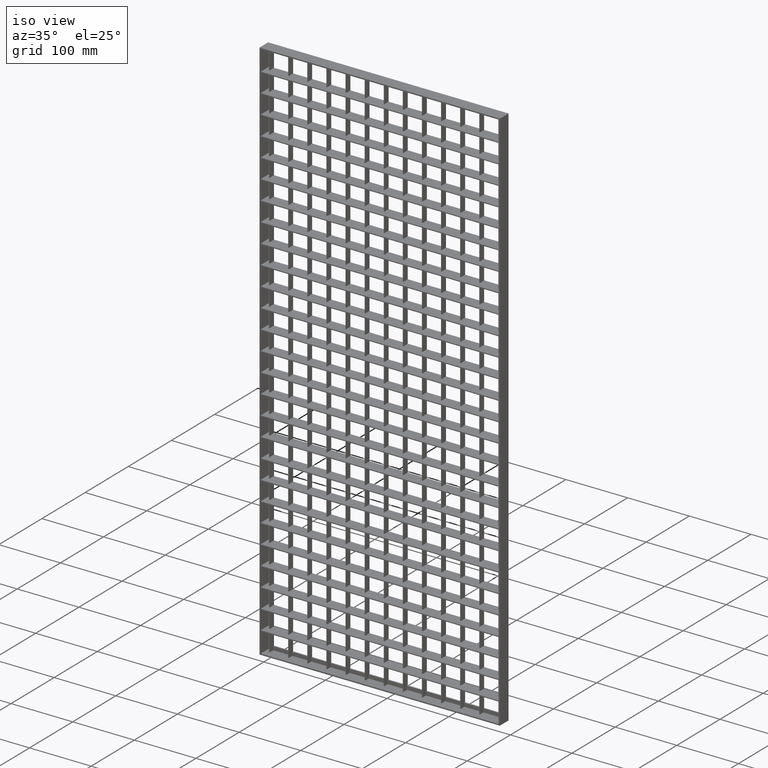
[diagram: clean part render]
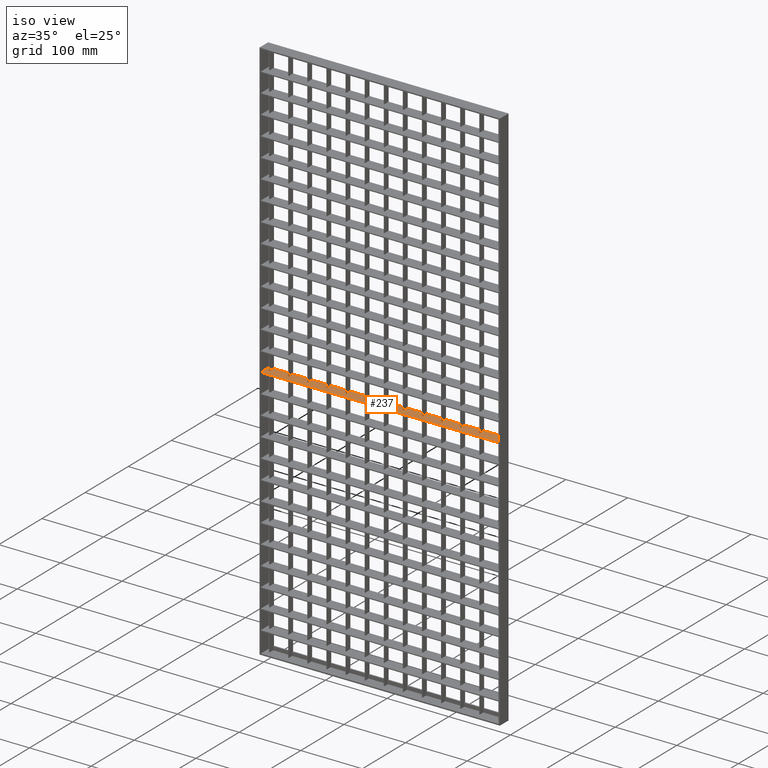
[diagram: same view with one face highlighted and labeled with its STEP entity id]
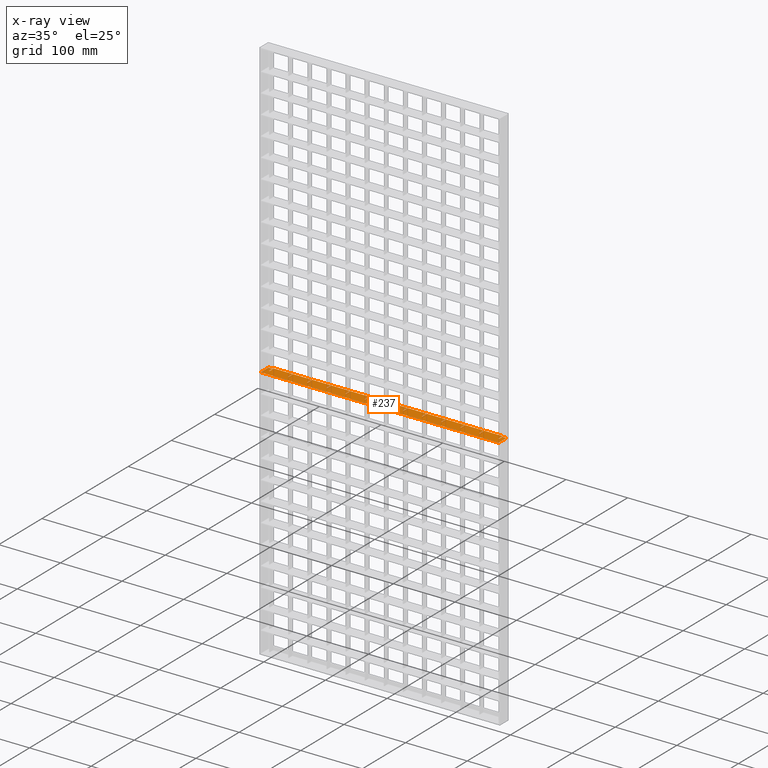
[diagram: x-ray of the same camera — body ghosted, the highlighted face saturated]
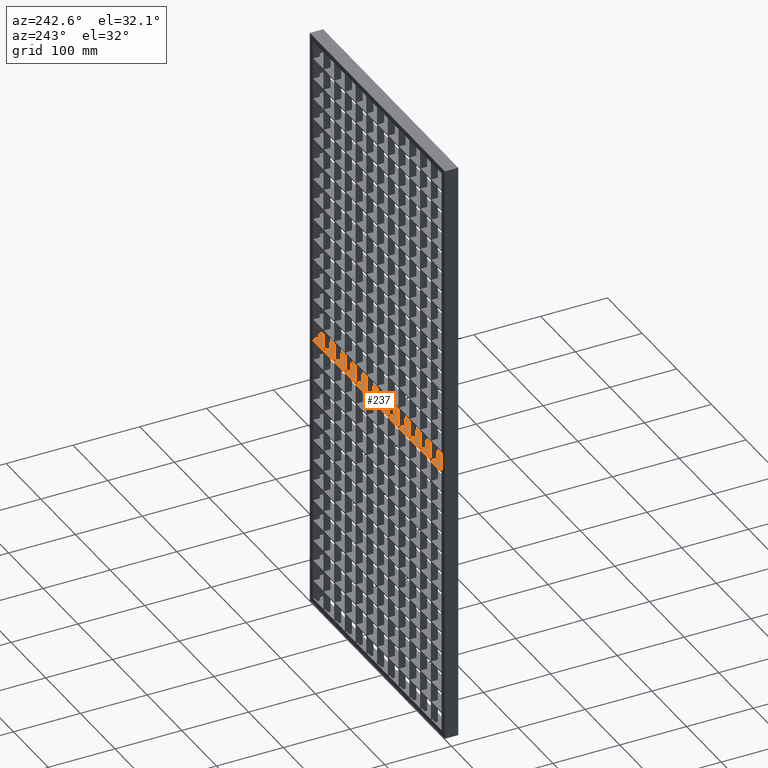
[diagram: same view with one face highlighted and labeled with its STEP entity id]
A machine part, iso view. The second image highlights one B-rep face of the part: STEP entity #237.
The next image is the same camera in x-ray: the body ghosted, the highlighted face saturated — about 0% of this face is hidden behind the body in this view.
A second angle (auxiliary view) of the same face is appended — the face is thin or edge-on in the first view.
In plain terms, the highlighted planar face has unit normal (0, 0, -1).
Its self-contained STEP definition (entity closure, byte-faithful):
#63 = ORIENTED_EDGE ( 'NONE', *, *, #46955, .T. ) ;
#68 = DIRECTION ( 'NONE',  ( -1.000000000000000000, -3.061616997868383100E-016, 0.0000000000000000000 ) ) ;
#237 = ADVANCED_FACE ( 'NONE', ( #7965 ), #49594, .F. ) ;
#270 = CARTESIAN_POINT ( 'NONE',  ( 318.5000000000000600, -9.999999999999881000, -475.7499999999998300 ) ) ;
#369 = ORIENTED_EDGE ( 'NONE', *, *, #13346, .F. ) ;
#382 = VECTOR ( 'NONE', #42459, 1000.000000000000000 ) ;
#421 = LINE ( 'NONE', #18877, #41153 ) ;
#816 = CARTESIAN_POINT ( 'NONE',  ( 194.5000000000000000, 4.006218688963914100E-015, -475.7499999999998300 ) ) ;
#1051 = CARTESIAN_POINT ( 'NONE',  ( 40.50000000000003600, 1.734723475976807100E-015, -475.7499999999998300 ) ) ;
#1086 = CARTESIAN_POINT ( 'NONE',  ( 408.0561711201316400, 6.938893903907228400E-014, -475.7499999999998300 ) ) ;
#1114 = ORIENTED_EDGE ( 'NONE', *, *, #15429, .T. ) ;
#1427 = EDGE_CURVE ( 'NONE', #21440, #25671, #1530, .T. ) ;
#1498 = CARTESIAN_POINT ( 'NONE',  ( 408.0561711201316400, 9.714451465470119700E-014, -475.7499999999998300 ) ) ;
#1527 = DIRECTION ( 'NONE',  ( 0.0000000000000000000, -1.000000000000000000, 0.0000000000000000000 ) ) ;
#1530 = LINE ( 'NONE', #26472, #45565 ) ;
#1734 = CARTESIAN_POINT ( 'NONE',  ( 408.0561711201316400, 7.806255641895631900E-014, -475.7499999999998300 ) ) ;
#1737 = CARTESIAN_POINT ( 'NONE',  ( 408.0561711201316400, 10.00000000000012100, -475.7499999999998300 ) ) ;
#1749 = DIRECTION ( 'NONE',  ( -1.000000000000000000, -3.061616997868381200E-016, 0.0000000000000000000 ) ) ;
#1875 = EDGE_CURVE ( 'NONE', #20072, #6559, #24755, .T. ) ;
#1971 = VERTEX_POINT ( 'NONE', #27092 ) ;
#2035 = EDGE_CURVE ( 'NONE', #48201, #40255, #32765, .T. ) ;
#2042 = VERTEX_POINT ( 'NONE', #35571 ) ;
#2337 = DIRECTION ( 'NONE',  ( 1.000000000000000000, -3.061616997868381200E-016, 0.0000000000000000000 ) ) ;
#2777 = DIRECTION ( 'NONE',  ( 0.0000000000000000000, 0.0000000000000000000, -1.000000000000000000 ) ) ;
#2973 = ORIENTED_EDGE ( 'NONE', *, *, #48140, .F. ) ;
#2989 = DIRECTION ( 'NONE',  ( -1.000000000000000000, -3.061616997868383100E-016, 0.0000000000000000000 ) ) ;
#3210 = ORIENTED_EDGE ( 'NONE', *, *, #1427, .F. ) ;
#3255 = ORIENTED_EDGE ( 'NONE', *, *, #46879, .F. ) ;
#3257 = ORIENTED_EDGE ( 'NONE', *, *, #37257, .T. ) ;
#3399 = CARTESIAN_POINT ( 'NONE',  ( 226.5000000000001700, 10.00000000000006400, -475.7499999999998300 ) ) ;
#3609 = EDGE_CURVE ( 'NONE', #40255, #8225, #3876, .T. ) ;
#3862 = EDGE_CURVE ( 'NONE', #30713, #9901, #6626, .T. ) ;
#3866 = ORIENTED_EDGE ( 'NONE', *, *, #46438, .F. ) ;
#3876 = LINE ( 'NONE', #18207, #21850 ) ;
#3988 = CARTESIAN_POINT ( 'NONE',  ( 195.5000000000000600, 10.00000000000005300, -475.7499999999998300 ) ) ;
#4001 = ORIENTED_EDGE ( 'NONE', *, *, #27707, .T. ) ;
#4385 = EDGE_CURVE ( 'NONE', #22173, #34581, #31902, .T. ) ;
#4673 = LINE ( 'NONE', #6856, #54146 ) ;
#4738 = VERTEX_POINT ( 'NONE', #32320 ) ;
#4905 = DIRECTION ( 'NONE',  ( 0.0000000000000000000, -1.000000000000000000, 0.0000000000000000000 ) ) ;
#4929 = DIRECTION ( 'NONE',  ( 0.0000000000000000000, -1.000000000000000000, 0.0000000000000000000 ) ) ;
#4942 = EDGE_CURVE ( 'NONE', #19429, #15413, #34463, .T. ) ;
#5078 = ORIENTED_EDGE ( 'NONE', *, *, #33174, .T. ) ;
#5100 = EDGE_CURVE ( 'NONE', #37119, #21631, #34414, .T. ) ;
#5117 = EDGE_CURVE ( 'NONE', #27367, #22173, #13692, .T. ) ;
#5299 = DIRECTION ( 'NONE',  ( 0.0000000000000000000, 1.000000000000000000, 0.0000000000000000000 ) ) ;
#5538 = LINE ( 'NONE', #1498, #40219 ) ;
#5614 = ORIENTED_EDGE ( 'NONE', *, *, #37575, .F. ) ;
#5666 = DIRECTION ( 'NONE',  ( 1.000000000000000000, -3.061616997868381200E-016, 0.0000000000000000000 ) ) ;
#6009 = ORIENTED_EDGE ( 'NONE', *, *, #44670, .T. ) ;
#6010 = DIRECTION ( 'NONE',  ( -1.000000000000000000, -3.061616997868383100E-016, 0.0000000000000000000 ) ) ;
#6059 = EDGE_CURVE ( 'NONE', #36776, #41568, #15555, .T. ) ;
#6076 = VECTOR ( 'NONE', #14223, 1000.000000000000000 ) ;
#6293 = VECTOR ( 'NONE', #13672, 1000.000000000000000 ) ;
#6340 = VECTOR ( 'NONE', #43347, 1000.000000000000000 ) ;
#6490 = CARTESIAN_POINT ( 'NONE',  ( 2.000000000000003600, -10.00000000000000000, -475.7499999999998300 ) ) ;
#6559 = VERTEX_POINT ( 'NONE', #6490 ) ;
#6626 = LINE ( 'NONE', #19313, #32615 ) ;
#6679 = CARTESIAN_POINT ( 'NONE',  ( 349.5000000000001100, 2.741007806152566700E-015, -475.7499999999998300 ) ) ;
#6795 = LINE ( 'NONE', #26118, #47474 ) ;
#6856 = CARTESIAN_POINT ( 'NONE',  ( 382.0000000000000600, 8.000000000000001800, -475.7499999999998300 ) ) ;
#6949 = VECTOR ( 'NONE', #34655, 1000.000000000000000 ) ;
#7043 = EDGE_CURVE ( 'NONE', #25671, #14429, #6795, .T. ) ;
#7054 = ORIENTED_EDGE ( 'NONE', *, *, #50504, .T. ) ;
#7240 = DIRECTION ( 'NONE',  ( 0.0000000000000000000, 1.000000000000000000, 0.0000000000000000000 ) ) ;
#7363 = EDGE_CURVE ( 'NONE', #21631, #36112, #22039, .T. ) ;
#7482 = ORIENTED_EDGE ( 'NONE', *, *, #24256, .F. ) ;
#7569 = CARTESIAN_POINT ( 'NONE',  ( 257.5000000000001100, 10.00000000000007300, -475.7499999999998300 ) ) ;
#7644 = CARTESIAN_POINT ( 'NONE',  ( 408.0561711201316400, 10.00000000000012100, -475.7499999999998300 ) ) ;
#7777 = VECTOR ( 'NONE', #46389, 1000.000000000000000 ) ;
#7893 = VECTOR ( 'NONE', #52473, 1000.000000000000000 ) ;
#7965 = FACE_OUTER_BOUND ( 'NONE', #23148, .T. ) ;
#8006 = VECTOR ( 'NONE', #68, 1000.000000000000000 ) ;
#8225 = VERTEX_POINT ( 'NONE', #54975 ) ;
#8494 = LINE ( 'NONE', #40041, #42524 ) ;
#8557 = EDGE_CURVE ( 'NONE', #15889, #21728, #45953, .T. ) ;
#8660 = ORIENTED_EDGE ( 'NONE', *, *, #2035, .F. ) ;
#8685 = VECTOR ( 'NONE', #35574, 1000.000000000000000 ) ;
#8803 = LINE ( 'NONE', #54336, #22820 ) ;
#9099 = VECTOR ( 'NONE', #30860, 1000.000000000000000 ) ;
#9434 = ORIENTED_EDGE ( 'NONE', *, *, #28523, .T. ) ;
#9717 = CARTESIAN_POINT ( 'NONE',  ( 408.0561711201316400, 10.00000000000012100, -475.7499999999998300 ) ) ;
#9727 = ORIENTED_EDGE ( 'NONE', *, *, #8557, .T. ) ;
#9901 = VERTEX_POINT ( 'NONE', #42356 ) ;
#9967 = CARTESIAN_POINT ( 'NONE',  ( 39.50000000000003600, -9.999999999999881000, -475.7499999999998300 ) ) ;
#10103 = LINE ( 'NONE', #15313, #26798 ) ;
#10123 = CARTESIAN_POINT ( 'NONE',  ( 195.0000000000000300, 8.000000000000001800, -475.7499999999998300 ) ) ;
#10453 = ORIENTED_EDGE ( 'NONE', *, *, #29276, .F. ) ;
#11071 = CARTESIAN_POINT ( 'NONE',  ( 408.0561711201316400, 1.162264728904460800E-013, -475.7499999999998300 ) ) ;
#11163 = CARTESIAN_POINT ( 'NONE',  ( 7.999999999999996400, 8.000000000000001800, -475.7499999999998300 ) ) ;
#11169 = VERTEX_POINT ( 'NONE', #36412 ) ;
#11181 = ORIENTED_EDGE ( 'NONE', *, *, #54154, .T. ) ;
#11191 = LINE ( 'NONE', #55251, #30569 ) ;
#11194 = EDGE_CURVE ( 'NONE', #33657, #15889, #53027, .T. ) ;
#11240 = ORIENTED_EDGE ( 'NONE', *, *, #30528, .F. ) ;
#11282 = VERTEX_POINT ( 'NONE', #19555 ) ;
#11696 = EDGE_CURVE ( 'NONE', #11282, #42205, #5538, .T. ) ;
#11713 = DIRECTION ( 'NONE',  ( 0.0000000000000000000, -1.000000000000000000, 0.0000000000000000000 ) ) ;
#11898 = DIRECTION ( 'NONE',  ( 0.0000000000000000000, 1.000000000000000000, 0.0000000000000000000 ) ) ;
#12000 = LINE ( 'NONE', #1737, #24025 ) ;
#12222 = CARTESIAN_POINT ( 'NONE',  ( 163.5000000000000000, 10.00000000000000400, -475.7499999999998300 ) ) ;
#12579 = VERTEX_POINT ( 'NONE', #18188 ) ;
#12752 = CARTESIAN_POINT ( 'NONE',  ( 8.500000000000007100, -9.999999999999881000, -475.7499999999998300 ) ) ;
#12923 = LINE ( 'NONE', #13485, #16259 ) ;
#13344 = DIRECTION ( 'NONE',  ( 0.0000000000000000000, 1.000000000000000000, 0.0000000000000000000 ) ) ;
#13346 = EDGE_CURVE ( 'NONE', #8225, #9901, #35448, .T. ) ;
#13349 = CARTESIAN_POINT ( 'NONE',  ( 408.0561711201316400, 10.00000000000012100, -475.7499999999998300 ) ) ;
#13485 = CARTESIAN_POINT ( 'NONE',  ( 194.5000000000000000, -9.999999999999881000, -475.7499999999998300 ) ) ;
#13533 = LINE ( 'NONE', #14767, #47650 ) ;
#13582 = ORIENTED_EDGE ( 'NONE', *, *, #1875, .F. ) ;
#13613 = ORIENTED_EDGE ( 'NONE', *, *, #53094, .T. ) ;
#13672 = DIRECTION ( 'NONE',  ( 0.0000000000000000000, 1.000000000000000000, 0.0000000000000000000 ) ) ;
#13692 = LINE ( 'NONE', #30118, #39139 ) ;
#13836 = CARTESIAN_POINT ( 'NONE',  ( 102.4999999999999900, -9.999999999999881000, -475.7499999999998300 ) ) ;
#13902 = CARTESIAN_POINT ( 'NONE',  ( 349.5000000000001700, 10.00000000000010300, -475.7499999999998300 ) ) ;
#13911 = DIRECTION ( 'NONE',  ( -1.000000000000000000, -3.061616997868381200E-016, 0.0000000000000000000 ) ) ;
#13994 = CARTESIAN_POINT ( 'NONE',  ( 226.5000000000001100, -9.999999999999881000, -475.7499999999998300 ) ) ;
#13998 = CARTESIAN_POINT ( 'NONE',  ( 408.0561711201316400, -9.999999999999881000, -475.7499999999998300 ) ) ;
#14093 = VERTEX_POINT ( 'NONE', #12222 ) ;
#14122 = VECTOR ( 'NONE', #7240, 1000.000000000000000 ) ;
#14204 = VECTOR ( 'NONE', #53289, 1000.000000000000000 ) ;
#14210 = EDGE_CURVE ( 'NONE', #46195, #41833, #39308, .T. ) ;
#14222 = CARTESIAN_POINT ( 'NONE',  ( 163.5000000000000000, 3.188823375455965000E-015, -475.7499999999998300 ) ) ;
#14223 = DIRECTION ( 'NONE',  ( 0.0000000000000000000, 1.000000000000000000, 0.0000000000000000000 ) ) ;
#14233 = CARTESIAN_POINT ( 'NONE',  ( 388.0000000000000600, -9.999999999999881000, -475.7499999999998300 ) ) ;
#14331 = DIRECTION ( 'NONE',  ( -1.000000000000000000, -3.061616997868383100E-016, 0.0000000000000000000 ) ) ;
#14429 = VERTEX_POINT ( 'NONE', #26949 ) ;
#14573 = VECTOR ( 'NONE', #2989, 1000.000000000000000 ) ;
#14580 = ORIENTED_EDGE ( 'NONE', *, *, #5117, .F. ) ;
#14649 = CARTESIAN_POINT ( 'NONE',  ( 319.5000000000001100, 10.00000000000009200, -475.7499999999998300 ) ) ;
#14735 = CARTESIAN_POINT ( 'NONE',  ( 408.0561711201316400, -1.387778780781445700E-014, -475.7499999999998300 ) ) ;
#14767 = CARTESIAN_POINT ( 'NONE',  ( 2.000000000000003600, -10.00000000000000000, -475.7499999999998300 ) ) ;
#15005 = VERTEX_POINT ( 'NONE', #816 ) ;
#15313 = CARTESIAN_POINT ( 'NONE',  ( 349.5000000000001100, -9.999999999999881000, -475.7499999999998300 ) ) ;
#15328 = CARTESIAN_POINT ( 'NONE',  ( 194.5000000000000000, 10.00000000000000400, -475.7499999999998300 ) ) ;
#15356 = DIRECTION ( 'NONE',  ( -1.000000000000000000, 0.0000000000000000000, -0.0000000000000000000 ) ) ;
#15413 = VERTEX_POINT ( 'NONE', #1051 ) ;
#15429 = EDGE_CURVE ( 'NONE', #47511, #11282, #35130, .T. ) ;
#15555 = LINE ( 'NONE', #36797, #34313 ) ;
#15785 = ORIENTED_EDGE ( 'NONE', *, *, #17867, .T. ) ;
#15865 = ORIENTED_EDGE ( 'NONE', *, *, #14210, .T. ) ;
#15889 = VERTEX_POINT ( 'NONE', #41865 ) ;
#16138 = CARTESIAN_POINT ( 'NONE',  ( 287.5000000000001100, 10.00000000000008300, -475.7499999999998300 ) ) ;
#16259 = VECTOR ( 'NONE', #43404, 1000.000000000000000 ) ;
#16352 = ORIENTED_EDGE ( 'NONE', *, *, #44871, .T. ) ;
#16355 = ORIENTED_EDGE ( 'NONE', *, *, #41570, .T. ) ;
#16551 = CARTESIAN_POINT ( 'NONE',  ( 288.5000000000001100, 10.00000000000008300, -475.7499999999998300 ) ) ;
#16624 = VERTEX_POINT ( 'NONE', #19667 ) ;
#16670 = CARTESIAN_POINT ( 'NONE',  ( 2.000000000000003600, 8.000000000000001800, -475.7499999999998300 ) ) ;
#16693 = LINE ( 'NONE', #41691, #21366 ) ;
#16848 = VERTEX_POINT ( 'NONE', #55381 ) ;
#16879 = VERTEX_POINT ( 'NONE', #32974 ) ;
#17028 = ORIENTED_EDGE ( 'NONE', *, *, #48203, .T. ) ;
#17867 = EDGE_CURVE ( 'NONE', #11169, #34581, #52917, .T. ) ;
#17912 = DIRECTION ( 'NONE',  ( -1.000000000000000000, -3.061616997868383100E-016, 0.0000000000000000000 ) ) ;
#17952 = VERTEX_POINT ( 'NONE', #41241 ) ;
#18001 = DIRECTION ( 'NONE',  ( 0.0000000000000000000, -1.000000000000000000, 0.0000000000000000000 ) ) ;
#18188 = CARTESIAN_POINT ( 'NONE',  ( 133.5000000000000000, 1.734723475976807100E-015, -475.7499999999998300 ) ) ;
#18207 = CARTESIAN_POINT ( 'NONE',  ( 408.0561711201316400, -5.204170427930421300E-015, -475.7499999999998300 ) ) ;
#18317 = VECTOR ( 'NONE', #42654, 1000.000000000000000 ) ;
#18388 = CARTESIAN_POINT ( 'NONE',  ( 382.0000000000000600, 8.000000000000001800, -475.7499999999998300 ) ) ;
#18524 = DIRECTION ( 'NONE',  ( 0.0000000000000000000, 1.000000000000000000, 0.0000000000000000000 ) ) ;
#18568 = CARTESIAN_POINT ( 'NONE',  ( 408.0561711201316400, 10.00000000000012100, -475.7499999999998300 ) ) ;
#18779 = DIRECTION ( 'NONE',  ( 0.0000000000000000000, 1.000000000000000000, 0.0000000000000000000 ) ) ;
#18862 = VECTOR ( 'NONE', #48068, 1000.000000000000000 ) ;
#18877 = CARTESIAN_POINT ( 'NONE',  ( 408.0561711201316400, -2.428612866367529900E-014, -475.7499999999998300 ) ) ;
#18888 = VECTOR ( 'NONE', #49374, 1000.000000000000000 ) ;
#19285 = ORIENTED_EDGE ( 'NONE', *, *, #52448, .T. ) ;
#19300 = ORIENTED_EDGE ( 'NONE', *, *, #11696, .T. ) ;
#19302 = VECTOR ( 'NONE', #4929, 1000.000000000000000 ) ;
#19313 = CARTESIAN_POINT ( 'NONE',  ( 408.0561711201316400, 10.00000000000012100, -475.7499999999998300 ) ) ;
#19429 = VERTEX_POINT ( 'NONE', #47407 ) ;
#19498 = DIRECTION ( 'NONE',  ( 0.0000000000000000000, 1.000000000000000000, 0.0000000000000000000 ) ) ;
#19555 = CARTESIAN_POINT ( 'NONE',  ( 102.4999999999999900, 1.734723475976807100E-015, -475.7499999999998300 ) ) ;
#19605 = DIRECTION ( 'NONE',  ( 0.0000000000000000000, -1.000000000000000000, 0.0000000000000000000 ) ) ;
#19667 = CARTESIAN_POINT ( 'NONE',  ( 319.5000000000001100, 2.826379213078284100E-015, -475.7499999999998300 ) ) ;
#20014 = CARTESIAN_POINT ( 'NONE',  ( 408.0561711201316400, -9.999999999999881000, -475.7499999999998300 ) ) ;
#20072 = VERTEX_POINT ( 'NONE', #25414 ) ;
#20477 = ORIENTED_EDGE ( 'NONE', *, *, #6059, .T. ) ;
#20608 = CARTESIAN_POINT ( 'NONE',  ( 408.0561711201316400, 1.249000902703301100E-013, -475.7499999999998300 ) ) ;
#20683 = LINE ( 'NONE', #1086, #53471 ) ;
#20689 = LINE ( 'NONE', #22143, #25365 ) ;
#20824 = DIRECTION ( 'NONE',  ( 0.0000000000000000000, 1.000000000000000000, 0.0000000000000000000 ) ) ;
#21366 = VECTOR ( 'NONE', #37381, 1000.000000000000000 ) ;
#21440 = VERTEX_POINT ( 'NONE', #16138 ) ;
#21611 = CARTESIAN_POINT ( 'NONE',  ( 408.0561711201316400, 10.00000000000012100, -475.7499999999998300 ) ) ;
#21631 = VERTEX_POINT ( 'NONE', #48253 ) ;
#21712 = VECTOR ( 'NONE', #13344, 1000.000000000000000 ) ;
#21728 = VERTEX_POINT ( 'NONE', #14222 ) ;
#21753 = EDGE_CURVE ( 'NONE', #2042, #16624, #421, .T. ) ;
#21761 = EDGE_CURVE ( 'NONE', #29637, #49231, #33116, .T. ) ;
#21850 = VECTOR ( 'NONE', #39543, 1000.000000000000000 ) ;
#22017 = EDGE_CURVE ( 'NONE', #25715, #47511, #41106, .T. ) ;
#22039 = LINE ( 'NONE', #11163, #40755 ) ;
#22143 = CARTESIAN_POINT ( 'NONE',  ( 9.500000000000008900, -9.999999999999881000, -475.7499999999998300 ) ) ;
#22159 = CARTESIAN_POINT ( 'NONE',  ( 101.4999999999999900, 3.288756224416873300E-015, -475.7499999999998300 ) ) ;
#22173 = VERTEX_POINT ( 'NONE', #29688 ) ;
#22278 = VERTEX_POINT ( 'NONE', #34390 ) ;
#22393 = VECTOR ( 'NONE', #50822, 1000.000000000000000 ) ;
#22410 = EDGE_CURVE ( 'NONE', #16848, #42629, #46413, .T. ) ;
#22472 = DIRECTION ( 'NONE',  ( 0.0000000000000000000, 1.000000000000000000, 0.0000000000000000000 ) ) ;
#22820 = VECTOR ( 'NONE', #11898, 1000.000000000000000 ) ;
#23083 = EDGE_CURVE ( 'NONE', #17952, #46195, #40272, .T. ) ;
#23148 = EDGE_LOOP ( 'NONE', ( #369, #50603, #8660, #16355, #7482, #36753, #2973, #44534, #11240, #28968, #31328, #36612, #5614, #33935, #3210, #41920, #10453, #53203, #29229, #15785, #51187, #14580, #3866, #20477, #9434, #5078, #6009, #13613, #24526, #9727, #19285, #11181, #16352, #34458, #28344, #49183, #1114, #19300, #25140, #3257, #4001, #30800, #7054, #47773, #47705, #63, #36352, #17028, #33628, #35005, #15865, #25395, #29116, #45054, #3255, #13582, #25806, #49701, #48405, #38389 ) ) ;
#23175 = CARTESIAN_POINT ( 'NONE',  ( 132.5000000000000000, 10.00000000000000400, -475.7499999999998300 ) ) ;
#23411 = CARTESIAN_POINT ( 'NONE',  ( 132.5000000000000000, -9.999999999999881000, -475.7499999999998300 ) ) ;
#23493 = CARTESIAN_POINT ( 'NONE',  ( 225.5000000000001100, 2.741007806152566700E-015, -475.7499999999998300 ) ) ;
#23529 = VECTOR ( 'NONE', #14331, 1000.000000000000000 ) ;
#23531 = DIRECTION ( 'NONE',  ( 0.0000000000000000000, -1.000000000000000000, 0.0000000000000000000 ) ) ;
#23950 = CARTESIAN_POINT ( 'NONE',  ( 8.500000000000007100, 2.571293759869857000E-015, -475.7499999999998300 ) ) ;
#24025 = VECTOR ( 'NONE', #53046, 1000.000000000000000 ) ;
#24119 = CARTESIAN_POINT ( 'NONE',  ( 380.5000000000000000, -9.999999999999881000, -475.7499999999998300 ) ) ;
#24169 = EDGE_CURVE ( 'NONE', #11169, #16848, #43879, .T. ) ;
#24256 = EDGE_CURVE ( 'NONE', #22278, #16879, #8494, .T. ) ;
#24493 = CARTESIAN_POINT ( 'NONE',  ( 2.000000000000003600, 8.000000000000001800, -475.7499999999998300 ) ) ;
#24503 = LINE ( 'NONE', #52527, #26481 ) ;
#24526 = ORIENTED_EDGE ( 'NONE', *, *, #11194, .T. ) ;
#24755 = LINE ( 'NONE', #13998, #52843 ) ;
#25140 = ORIENTED_EDGE ( 'NONE', *, *, #47583, .T. ) ;
#25365 = VECTOR ( 'NONE', #18001, 1000.000000000000000 ) ;
#25395 = ORIENTED_EDGE ( 'NONE', *, *, #42444, .T. ) ;
#25414 = CARTESIAN_POINT ( 'NONE',  ( 388.0000000000000600, -10.00000000000000500, -475.7499999999998300 ) ) ;
#25505 = LINE ( 'NONE', #14735, #37538 ) ;
#25671 = VERTEX_POINT ( 'NONE', #44088 ) ;
#25715 = VERTEX_POINT ( 'NONE', #23175 ) ;
#25806 = ORIENTED_EDGE ( 'NONE', *, *, #33221, .T. ) ;
#25913 = VERTEX_POINT ( 'NONE', #37167 ) ;
#25948 = VECTOR ( 'NONE', #22472, 1000.000000000000000 ) ;
#26118 = CARTESIAN_POINT ( 'NONE',  ( 408.0561711201316400, -3.295974604355933500E-014, -475.7499999999998300 ) ) ;
#26382 = VERTEX_POINT ( 'NONE', #36184 ) ;
#26472 = CARTESIAN_POINT ( 'NONE',  ( 287.5000000000000600, -9.999999999999881000, -475.7499999999998300 ) ) ;
#26481 = VECTOR ( 'NONE', #44486, 1000.000000000000000 ) ;
#26646 = VERTEX_POINT ( 'NONE', #54319 ) ;
#26674 = LINE ( 'NONE', #43545, #19302 ) ;
#26703 = CARTESIAN_POINT ( 'NONE',  ( 408.0561711201316400, -4.336808689942017700E-014, -475.7499999999998300 ) ) ;
#26798 = VECTOR ( 'NONE', #19605, 1000.000000000000000 ) ;
#26949 = CARTESIAN_POINT ( 'NONE',  ( 288.5000000000001100, 3.643774526586236400E-015, -475.7499999999998300 ) ) ;
#27092 = CARTESIAN_POINT ( 'NONE',  ( 133.5000000000001700, 10.00000000000003700, -475.7499999999998300 ) ) ;
#27326 = CARTESIAN_POINT ( 'NONE',  ( 408.0561711201316400, 10.00000000000012100, -475.7499999999998300 ) ) ;
#27367 = VERTEX_POINT ( 'NONE', #23493 ) ;
#27707 = EDGE_CURVE ( 'NONE', #26646, #31215, #31390, .T. ) ;
#27711 = LINE ( 'NONE', #52482, #6340 ) ;
#27980 = VERTEX_POINT ( 'NONE', #6679 ) ;
#28107 = CARTESIAN_POINT ( 'NONE',  ( 101.4999999999999900, -9.999999999999881000, -475.7499999999998300 ) ) ;
#28263 = VECTOR ( 'NONE', #4905, 1000.000000000000000 ) ;
#28344 = ORIENTED_EDGE ( 'NONE', *, *, #44911, .T. ) ;
#28523 = EDGE_CURVE ( 'NONE', #41568, #39621, #26674, .T. ) ;
#28925 = LINE ( 'NONE', #48816, #18862 ) ;
#28968 = ORIENTED_EDGE ( 'NONE', *, *, #21753, .F. ) ;
#29116 = ORIENTED_EDGE ( 'NONE', *, *, #7363, .F. ) ;
#29229 = ORIENTED_EDGE ( 'NONE', *, *, #24169, .F. ) ;
#29276 = EDGE_CURVE ( 'NONE', #42629, #45119, #11191, .T. ) ;
#29561 = DIRECTION ( 'NONE',  ( 1.000000000000000000, -3.061616997868381200E-016, 0.0000000000000000000 ) ) ;
#29637 = VERTEX_POINT ( 'NONE', #13902 ) ;
#29688 = CARTESIAN_POINT ( 'NONE',  ( 226.5000000000001400, 3.543841677625303200E-015, -475.7499999999998300 ) ) ;
#29718 = LINE ( 'NONE', #31691, #45781 ) ;
#30118 = CARTESIAN_POINT ( 'NONE',  ( 408.0561711201316400, -5.204170427930421300E-014, -475.7499999999998300 ) ) ;
#30252 = LINE ( 'NONE', #23411, #14204 ) ;
#30263 = VERTEX_POINT ( 'NONE', #15328 ) ;
#30528 = EDGE_CURVE ( 'NONE', #16624, #49231, #40453, .T. ) ;
#30569 = VECTOR ( 'NONE', #20824, 1000.000000000000000 ) ;
#30584 = CARTESIAN_POINT ( 'NONE',  ( 318.5000000000001100, 10.00000000000009200, -475.7499999999998300 ) ) ;
#30713 = VERTEX_POINT ( 'NONE', #48495 ) ;
#30800 = ORIENTED_EDGE ( 'NONE', *, *, #35367, .T. ) ;
#30860 = DIRECTION ( 'NONE',  ( 0.0000000000000000000, -1.000000000000000000, 0.0000000000000000000 ) ) ;
#30892 = DIRECTION ( 'NONE',  ( -1.000000000000000000, -3.061616997868381200E-016, 0.0000000000000000000 ) ) ;
#31109 = CARTESIAN_POINT ( 'NONE',  ( 70.50000000000000000, 10.00000000000000400, -475.7499999999998300 ) ) ;
#31215 = VERTEX_POINT ( 'NONE', #43186 ) ;
#31328 = ORIENTED_EDGE ( 'NONE', *, *, #47284, .F. ) ;
#31390 = LINE ( 'NONE', #50728, #47388 ) ;
#31501 = CARTESIAN_POINT ( 'NONE',  ( 8.000000000000117200, 9.999999999999996400, -475.7499999999998300 ) ) ;
#31523 = CARTESIAN_POINT ( 'NONE',  ( 39.49999999999997900, 3.388689073377781700E-015, -475.7499999999998300 ) ) ;
#31577 = DIRECTION ( 'NONE',  ( 0.0000000000000000000, 1.000000000000000000, 0.0000000000000000000 ) ) ;
#31691 = CARTESIAN_POINT ( 'NONE',  ( 163.5000000000000000, -9.999999999999881000, -475.7499999999998300 ) ) ;
#31902 = LINE ( 'NONE', #13994, #45226 ) ;
#32064 = EDGE_CURVE ( 'NONE', #27980, #22278, #25505, .T. ) ;
#32320 = CARTESIAN_POINT ( 'NONE',  ( 388.0000000000001100, 8.000000000000001800, -475.7499999999998900 ) ) ;
#32408 = VECTOR ( 'NONE', #5666, 1000.000000000000000 ) ;
#32499 = EDGE_CURVE ( 'NONE', #41196, #19429, #51506, .T. ) ;
#32540 = VERTEX_POINT ( 'NONE', #31523 ) ;
#32615 = VECTOR ( 'NONE', #49803, 1000.000000000000000 ) ;
#32765 = LINE ( 'NONE', #24119, #43468 ) ;
#32930 = CARTESIAN_POINT ( 'NONE',  ( 408.0561711201316400, 10.00000000000012100, -475.7499999999998300 ) ) ;
#32974 = CARTESIAN_POINT ( 'NONE',  ( 350.5000000000001700, 10.00000000000010300, -475.7499999999998300 ) ) ;
#33116 = LINE ( 'NONE', #27326, #51162 ) ;
#33174 = EDGE_CURVE ( 'NONE', #39621, #15005, #20683, .T. ) ;
#33175 = DIRECTION ( 'NONE',  ( -1.000000000000000000, -3.061616997868383100E-016, 0.0000000000000000000 ) ) ;
#33221 = EDGE_CURVE ( 'NONE', #20072, #4738, #46059, .T. ) ;
#33239 = LINE ( 'NONE', #10123, #45285 ) ;
#33350 = CARTESIAN_POINT ( 'NONE',  ( 40.50000000000003600, -9.999999999999881000, -475.7499999999998300 ) ) ;
#33417 = EDGE_CURVE ( 'NONE', #30713, #36097, #4673, .T. ) ;
#33628 = ORIENTED_EDGE ( 'NONE', *, *, #41171, .T. ) ;
#33657 = VERTEX_POINT ( 'NONE', #42178 ) ;
#33935 = ORIENTED_EDGE ( 'NONE', *, *, #7043, .F. ) ;
#34313 = VECTOR ( 'NONE', #41095, 1000.000000000000000 ) ;
#34390 = CARTESIAN_POINT ( 'NONE',  ( 350.5000000000001700, 3.743707375547135700E-015, -475.7499999999998300 ) ) ;
#34414 = LINE ( 'NONE', #16670, #382 ) ;
#34458 = ORIENTED_EDGE ( 'NONE', *, *, #50571, .T. ) ;
#34463 = LINE ( 'NONE', #33350, #7777 ) ;
#34581 = VERTEX_POINT ( 'NONE', #3399 ) ;
#34655 = DIRECTION ( 'NONE',  ( -1.000000000000000000, -3.061616997868381200E-016, 0.0000000000000000000 ) ) ;
#35005 = ORIENTED_EDGE ( 'NONE', *, *, #23083, .T. ) ;
#35130 = LINE ( 'NONE', #13836, #9099 ) ;
#35143 = DIRECTION ( 'NONE',  ( 1.000000000000000000, 0.0000000000000000000, 0.0000000000000000000 ) ) ;
#35367 = EDGE_CURVE ( 'NONE', #31215, #26382, #52440, .T. ) ;
#35448 = LINE ( 'NONE', #35558, #6076 ) ;
#35558 = CARTESIAN_POINT ( 'NONE',  ( 381.5000000000000000, -9.999999999999881000, -475.7499999999998300 ) ) ;
#35571 = CARTESIAN_POINT ( 'NONE',  ( 318.5000000000000600, 2.741007806152566700E-015, -475.7499999999998300 ) ) ;
#35574 = DIRECTION ( 'NONE',  ( 0.0000000000000000000, 1.000000000000000000, 0.0000000000000000000 ) ) ;
#35747 = DIRECTION ( 'NONE',  ( 1.000000000000000000, -3.061616997868381200E-016, 0.0000000000000000000 ) ) ;
#36038 = DIRECTION ( 'NONE',  ( 0.0000000000000000000, -1.000000000000000000, 0.0000000000000000000 ) ) ;
#36097 = VERTEX_POINT ( 'NONE', #18388 ) ;
#36112 = VERTEX_POINT ( 'NONE', #31501 ) ;
#36184 = CARTESIAN_POINT ( 'NONE',  ( 70.50000000000000000, 2.471360910908936400E-015, -475.7499999999998300 ) ) ;
#36218 = VERTEX_POINT ( 'NONE', #53549 ) ;
#36352 = ORIENTED_EDGE ( 'NONE', *, *, #46784, .T. ) ;
#36412 = CARTESIAN_POINT ( 'NONE',  ( 256.5000000000001100, 10.00000000000007300, -475.7499999999998300 ) ) ;
#36612 = ORIENTED_EDGE ( 'NONE', *, *, #50058, .T. ) ;
#36753 = ORIENTED_EDGE ( 'NONE', *, *, #32064, .F. ) ;
#36776 = VERTEX_POINT ( 'NONE', #49002 ) ;
#36797 = CARTESIAN_POINT ( 'NONE',  ( 408.0561711201316400, 10.00000000000012100, -475.7499999999998300 ) ) ;
#36950 = LINE ( 'NONE', #270, #28263 ) ;
#37119 = VERTEX_POINT ( 'NONE', #24493 ) ;
#37167 = CARTESIAN_POINT ( 'NONE',  ( 101.5000000000000000, 10.00000000000000400, -475.7499999999998300 ) ) ;
#37257 = EDGE_CURVE ( 'NONE', #25913, #26646, #37564, .T. ) ;
#37381 = DIRECTION ( 'NONE',  ( -1.000000000000000000, -3.061616997868383100E-016, 0.0000000000000000000 ) ) ;
#37538 = VECTOR ( 'NONE', #2337, 1000.000000000000000 ) ;
#37564 = LINE ( 'NONE', #9717, #23529 ) ;
#37575 = EDGE_CURVE ( 'NONE', #14429, #48894, #8803, .T. ) ;
#37810 = CARTESIAN_POINT ( 'NONE',  ( 257.5000000000000600, 2.726446364117366200E-015, -475.7499999999998300 ) ) ;
#38389 = ORIENTED_EDGE ( 'NONE', *, *, #3862, .T. ) ;
#38411 = VERTEX_POINT ( 'NONE', #30584 ) ;
#38445 = VECTOR ( 'NONE', #1749, 1000.000000000000000 ) ;
#39136 = DIRECTION ( 'NONE',  ( 0.0000000000000000000, -1.000000000000000000, 0.0000000000000000000 ) ) ;
#39139 = VECTOR ( 'NONE', #29561, 1000.000000000000000 ) ;
#39308 = LINE ( 'NONE', #12752, #25948 ) ;
#39543 = DIRECTION ( 'NONE',  ( 1.000000000000000000, -3.061616997868381200E-016, 0.0000000000000000000 ) ) ;
#39621 = VERTEX_POINT ( 'NONE', #46912 ) ;
#40041 = CARTESIAN_POINT ( 'NONE',  ( 350.5000000000001100, -9.999999999999881000, -475.7499999999998300 ) ) ;
#40219 = VECTOR ( 'NONE', #13911, 1000.000000000000000 ) ;
#40255 = VERTEX_POINT ( 'NONE', #43113 ) ;
#40272 = LINE ( 'NONE', #20608, #6949 ) ;
#40453 = LINE ( 'NONE', #48117, #21712 ) ;
#40755 = VECTOR ( 'NONE', #18779, 1000.000000000000000 ) ;
#41017 = LINE ( 'NONE', #9967, #6293 ) ;
#41095 = DIRECTION ( 'NONE',  ( -1.000000000000000000, -3.061616997868383100E-016, 0.0000000000000000000 ) ) ;
#41106 = LINE ( 'NONE', #32930, #22393 ) ;
#41153 = VECTOR ( 'NONE', #35747, 1000.000000000000000 ) ;
#41171 = EDGE_CURVE ( 'NONE', #43102, #17952, #20689, .T. ) ;
#41177 = VECTOR ( 'NONE', #47561, 1000.000000000000000 ) ;
#41196 = VERTEX_POINT ( 'NONE', #31109 ) ;
#41241 = CARTESIAN_POINT ( 'NONE',  ( 9.500000000000008900, 1.734723475976807100E-015, -475.7499999999998300 ) ) ;
#41568 = VERTEX_POINT ( 'NONE', #3988 ) ;
#41570 = EDGE_CURVE ( 'NONE', #48201, #16879, #46685, .T. ) ;
#41679 = VECTOR ( 'NONE', #23531, 1000.000000000000000 ) ;
#41691 = CARTESIAN_POINT ( 'NONE',  ( 408.0561711201316400, 10.00000000000012100, -475.7499999999998300 ) ) ;
#41824 = LINE ( 'NONE', #13349, #41177 ) ;
#41833 = VERTEX_POINT ( 'NONE', #45556 ) ;
#41865 = CARTESIAN_POINT ( 'NONE',  ( 164.5000000000000000, 1.734723475976807100E-015, -475.7499999999998300 ) ) ;
#41920 = ORIENTED_EDGE ( 'NONE', *, *, #52131, .T. ) ;
#42178 = CARTESIAN_POINT ( 'NONE',  ( 164.5000000000000600, 10.00000000000004600, -475.7499999999998300 ) ) ;
#42205 = VERTEX_POINT ( 'NONE', #22159 ) ;
#42296 = CARTESIAN_POINT ( 'NONE',  ( 408.0561711201316400, 1.058181320345852300E-013, -475.7499999999998300 ) ) ;
#42356 = CARTESIAN_POINT ( 'NONE',  ( 381.5000000000000600, 10.00000000000011200, -475.7499999999998300 ) ) ;
#42444 = EDGE_CURVE ( 'NONE', #41833, #36112, #53315, .T. ) ;
#42459 = DIRECTION ( 'NONE',  ( 1.000000000000000000, 0.0000000000000000000, 0.0000000000000000000 ) ) ;
#42524 = VECTOR ( 'NONE', #18524, 1000.000000000000000 ) ;
#42629 = VERTEX_POINT ( 'NONE', #37810 ) ;
#42654 = DIRECTION ( 'NONE',  ( -1.000000000000000000, -3.061616997868381200E-016, 0.0000000000000000000 ) ) ;
#42732 = DIRECTION ( 'NONE',  ( -1.000000000000000000, -3.061616997868383100E-016, 0.0000000000000000000 ) ) ;
#43102 = VERTEX_POINT ( 'NONE', #44669 ) ;
#43113 = CARTESIAN_POINT ( 'NONE',  ( 380.5000000000000000, 2.741007806152566700E-015, -475.7499999999998300 ) ) ;
#43186 = CARTESIAN_POINT ( 'NONE',  ( 71.50000000000001400, 1.734723475976807100E-015, -475.7499999999998300 ) ) ;
#43347 = DIRECTION ( 'NONE',  ( 0.0000000000000000000, -1.000000000000000000, 0.0000000000000000000 ) ) ;
#43404 = DIRECTION ( 'NONE',  ( 0.0000000000000000000, 1.000000000000000000, 0.0000000000000000000 ) ) ;
#43468 = VECTOR ( 'NONE', #36038, 1000.000000000000000 ) ;
#43545 = CARTESIAN_POINT ( 'NONE',  ( 195.5000000000000000, -9.999999999999881000, -475.7499999999998300 ) ) ;
#43596 = CARTESIAN_POINT ( 'NONE',  ( 256.5000000000000600, -9.999999999999881000, -475.7499999999998300 ) ) ;
#43879 = LINE ( 'NONE', #43596, #46547 ) ;
#44085 = CARTESIAN_POINT ( 'NONE',  ( 70.50000000000000000, -9.999999999999881000, -475.7499999999998300 ) ) ;
#44088 = CARTESIAN_POINT ( 'NONE',  ( 287.5000000000000600, 2.741007806152566700E-015, -475.7499999999998300 ) ) ;
#44272 = CARTESIAN_POINT ( 'NONE',  ( 408.0561711201316400, 8.673617379884035500E-014, -475.7499999999998300 ) ) ;
#44486 = DIRECTION ( 'NONE',  ( -1.000000000000000000, -3.061616997868383100E-016, 0.0000000000000000000 ) ) ;
#44496 = DIRECTION ( 'NONE',  ( -1.000000000000000000, -3.061616997868383100E-016, 0.0000000000000000000 ) ) ;
#44534 = ORIENTED_EDGE ( 'NONE', *, *, #21761, .T. ) ;
#44669 = CARTESIAN_POINT ( 'NONE',  ( 9.500000000000119000, 9.999999999999998200, -475.7499999999998300 ) ) ;
#44670 = EDGE_CURVE ( 'NONE', #15005, #30263, #12923, .T. ) ;
#44871 = EDGE_CURVE ( 'NONE', #1971, #12579, #28925, .T. ) ;
#44911 = EDGE_CURVE ( 'NONE', #36218, #25715, #30252, .T. ) ;
#45054 = ORIENTED_EDGE ( 'NONE', *, *, #5100, .F. ) ;
#45119 = VERTEX_POINT ( 'NONE', #7569 ) ;
#45226 = VECTOR ( 'NONE', #5299, 1000.000000000000000 ) ;
#45285 = VECTOR ( 'NONE', #35143, 1000.000000000000000 ) ;
#45556 = CARTESIAN_POINT ( 'NONE',  ( 8.500000000000007100, 10.00000000000000400, -475.7499999999998300 ) ) ;
#45565 = VECTOR ( 'NONE', #1527, 1000.000000000000000 ) ;
#45751 = CARTESIAN_POINT ( 'NONE',  ( 39.50000000000000700, 10.00000000000000400, -475.7499999999998300 ) ) ;
#45781 = VECTOR ( 'NONE', #19498, 1000.000000000000000 ) ;
#45953 = LINE ( 'NONE', #1734, #7893 ) ;
#46059 = LINE ( 'NONE', #14233, #8685 ) ;
#46195 = VERTEX_POINT ( 'NONE', #23950 ) ;
#46389 = DIRECTION ( 'NONE',  ( 0.0000000000000000000, -1.000000000000000000, 0.0000000000000000000 ) ) ;
#46413 = LINE ( 'NONE', #26703, #32408 ) ;
#46438 = EDGE_CURVE ( 'NONE', #36776, #27367, #27711, .T. ) ;
#46547 = VECTOR ( 'NONE', #39136, 1000.000000000000000 ) ;
#46685 = LINE ( 'NONE', #51525, #8006 ) ;
#46784 = EDGE_CURVE ( 'NONE', #32540, #50765, #41017, .T. ) ;
#46879 = EDGE_CURVE ( 'NONE', #6559, #37119, #13533, .T. ) ;
#46912 = CARTESIAN_POINT ( 'NONE',  ( 195.5000000000000000, 1.734723475976807100E-015, -475.7499999999998300 ) ) ;
#46955 = EDGE_CURVE ( 'NONE', #15413, #32540, #51027, .T. ) ;
#47284 = EDGE_CURVE ( 'NONE', #38411, #2042, #36950, .T. ) ;
#47388 = VECTOR ( 'NONE', #11713, 1000.000000000000000 ) ;
#47407 = CARTESIAN_POINT ( 'NONE',  ( 40.50000000000014900, 10.00000000000000700, -475.7499999999998300 ) ) ;
#47474 = VECTOR ( 'NONE', #51885, 1000.000000000000000 ) ;
#47511 = VERTEX_POINT ( 'NONE', #48864 ) ;
#47561 = DIRECTION ( 'NONE',  ( -1.000000000000000000, -3.061616997868383100E-016, 0.0000000000000000000 ) ) ;
#47583 = EDGE_CURVE ( 'NONE', #42205, #25913, #50295, .T. ) ;
#47650 = VECTOR ( 'NONE', #48435, 1000.000000000000000 ) ;
#47705 = ORIENTED_EDGE ( 'NONE', *, *, #4942, .T. ) ;
#47773 = ORIENTED_EDGE ( 'NONE', *, *, #32499, .T. ) ;
#48068 = DIRECTION ( 'NONE',  ( 0.0000000000000000000, -1.000000000000000000, 0.0000000000000000000 ) ) ;
#48117 = CARTESIAN_POINT ( 'NONE',  ( 319.5000000000000600, -9.999999999999881000, -475.7499999999998300 ) ) ;
#48140 = EDGE_CURVE ( 'NONE', #29637, #27980, #10103, .T. ) ;
#48201 = VERTEX_POINT ( 'NONE', #48800 ) ;
#48203 = EDGE_CURVE ( 'NONE', #50765, #43102, #16693, .T. ) ;
#48207 = VECTOR ( 'NONE', #42732, 1000.000000000000000 ) ;
#48253 = CARTESIAN_POINT ( 'NONE',  ( 7.999999999999996400, 8.000000000000001800, -475.7499999999998300 ) ) ;
#48257 = VECTOR ( 'NONE', #6010, 1000.000000000000000 ) ;
#48405 = ORIENTED_EDGE ( 'NONE', *, *, #33417, .F. ) ;
#48435 = DIRECTION ( 'NONE',  ( 0.0000000000000000000, 1.000000000000000000, 0.0000000000000000000 ) ) ;
#48495 = CARTESIAN_POINT ( 'NONE',  ( 382.0000000000001700, 10.00000000000000400, -475.7499999999998300 ) ) ;
#48800 = CARTESIAN_POINT ( 'NONE',  ( 380.5000000000000600, 10.00000000000011200, -475.7499999999998300 ) ) ;
#48816 = CARTESIAN_POINT ( 'NONE',  ( 133.5000000000000000, -9.999999999999881000, -475.7499999999998300 ) ) ;
#48864 = CARTESIAN_POINT ( 'NONE',  ( 102.5000000000001400, 10.00000000000002700, -475.7499999999998300 ) ) ;
#48894 = VERTEX_POINT ( 'NONE', #16551 ) ;
#49002 = CARTESIAN_POINT ( 'NONE',  ( 225.5000000000001700, 10.00000000000006400, -475.7499999999998300 ) ) ;
#49183 = ORIENTED_EDGE ( 'NONE', *, *, #22017, .T. ) ;
#49231 = VERTEX_POINT ( 'NONE', #14649 ) ;
#49374 = DIRECTION ( 'NONE',  ( -1.000000000000000000, -3.061616997868381200E-016, 0.0000000000000000000 ) ) ;
#49594 = PLANE ( 'NONE',  #52120 ) ;
#49701 = ORIENTED_EDGE ( 'NONE', *, *, #55124, .F. ) ;
#49803 = DIRECTION ( 'NONE',  ( -1.000000000000000000, -3.061616997868383100E-016, 0.0000000000000000000 ) ) ;
#50058 = EDGE_CURVE ( 'NONE', #38411, #48894, #24503, .T. ) ;
#50295 = LINE ( 'NONE', #28107, #14122 ) ;
#50504 = EDGE_CURVE ( 'NONE', #26382, #41196, #53854, .T. ) ;
#50512 = LINE ( 'NONE', #44272, #38445 ) ;
#50571 = EDGE_CURVE ( 'NONE', #12579, #36218, #50512, .T. ) ;
#50603 = ORIENTED_EDGE ( 'NONE', *, *, #3609, .F. ) ;
#50728 = CARTESIAN_POINT ( 'NONE',  ( 71.50000000000001400, -9.999999999999881000, -475.7499999999998300 ) ) ;
#50765 = VERTEX_POINT ( 'NONE', #45751 ) ;
#50822 = DIRECTION ( 'NONE',  ( -1.000000000000000000, -3.061616997868383100E-016, 0.0000000000000000000 ) ) ;
#51027 = LINE ( 'NONE', #11071, #18888 ) ;
#51162 = VECTOR ( 'NONE', #44496, 1000.000000000000000 ) ;
#51187 = ORIENTED_EDGE ( 'NONE', *, *, #4385, .F. ) ;
#51506 = LINE ( 'NONE', #21611, #48207 ) ;
#51525 = CARTESIAN_POINT ( 'NONE',  ( 408.0561711201316400, 10.00000000000012100, -475.7499999999998300 ) ) ;
#51885 = DIRECTION ( 'NONE',  ( 1.000000000000000000, -3.061616997868381200E-016, 0.0000000000000000000 ) ) ;
#52120 = AXIS2_PLACEMENT_3D ( 'NONE', #20014, #2777, #15356 ) ;
#52131 = EDGE_CURVE ( 'NONE', #21440, #45119, #41824, .T. ) ;
#52440 = LINE ( 'NONE', #42296, #18317 ) ;
#52448 = EDGE_CURVE ( 'NONE', #21728, #14093, #29718, .T. ) ;
#52473 = DIRECTION ( 'NONE',  ( -1.000000000000000000, -3.061616997868381200E-016, 0.0000000000000000000 ) ) ;
#52482 = CARTESIAN_POINT ( 'NONE',  ( 225.5000000000001100, -9.999999999999881000, -475.7499999999998300 ) ) ;
#52527 = CARTESIAN_POINT ( 'NONE',  ( 408.0561711201316400, 10.00000000000012100, -475.7499999999998300 ) ) ;
#52828 = CARTESIAN_POINT ( 'NONE',  ( 408.0561711201316400, 10.00000000000012100, -475.7499999999998300 ) ) ;
#52832 = LINE ( 'NONE', #7644, #54864 ) ;
#52843 = VECTOR ( 'NONE', #17912, 1000.000000000000000 ) ;
#52917 = LINE ( 'NONE', #52828, #48257 ) ;
#53027 = LINE ( 'NONE', #53039, #41679 ) ;
#53039 = CARTESIAN_POINT ( 'NONE',  ( 164.5000000000000000, -9.999999999999881000, -475.7499999999998300 ) ) ;
#53046 = DIRECTION ( 'NONE',  ( -1.000000000000000000, -3.061616997868383100E-016, 0.0000000000000000000 ) ) ;
#53094 = EDGE_CURVE ( 'NONE', #30263, #33657, #52832, .T. ) ;
#53203 = ORIENTED_EDGE ( 'NONE', *, *, #22410, .F. ) ;
#53289 = DIRECTION ( 'NONE',  ( 0.0000000000000000000, 1.000000000000000000, 0.0000000000000000000 ) ) ;
#53315 = LINE ( 'NONE', #18568, #14573 ) ;
#53471 = VECTOR ( 'NONE', #30892, 1000.000000000000000 ) ;
#53497 = DIRECTION ( 'NONE',  ( 0.0000000000000000000, -1.000000000000000000, 0.0000000000000000000 ) ) ;
#53549 = CARTESIAN_POINT ( 'NONE',  ( 132.4999999999999400, 2.371428061948003200E-015, -475.7499999999998300 ) ) ;
#53854 = LINE ( 'NONE', #44085, #55197 ) ;
#54146 = VECTOR ( 'NONE', #53497, 1000.000000000000000 ) ;
#54154 = EDGE_CURVE ( 'NONE', #14093, #1971, #12000, .T. ) ;
#54319 = CARTESIAN_POINT ( 'NONE',  ( 71.50000000000011400, 10.00000000000001800, -475.7499999999998300 ) ) ;
#54336 = CARTESIAN_POINT ( 'NONE',  ( 288.5000000000000600, -9.999999999999881000, -475.7499999999998300 ) ) ;
#54864 = VECTOR ( 'NONE', #33175, 1000.000000000000000 ) ;
#54975 = CARTESIAN_POINT ( 'NONE',  ( 381.5000000000000600, 2.926312062039215300E-015, -475.7499999999998300 ) ) ;
#55124 = EDGE_CURVE ( 'NONE', #36097, #4738, #33239, .T. ) ;
#55197 = VECTOR ( 'NONE', #31577, 1000.000000000000000 ) ;
#55251 = CARTESIAN_POINT ( 'NONE',  ( 257.5000000000000600, -9.999999999999881000, -475.7499999999998300 ) ) ;
#55381 = CARTESIAN_POINT ( 'NONE',  ( 256.5000000000000600, 2.741007806152566700E-015, -475.7499999999998300 ) ) ;